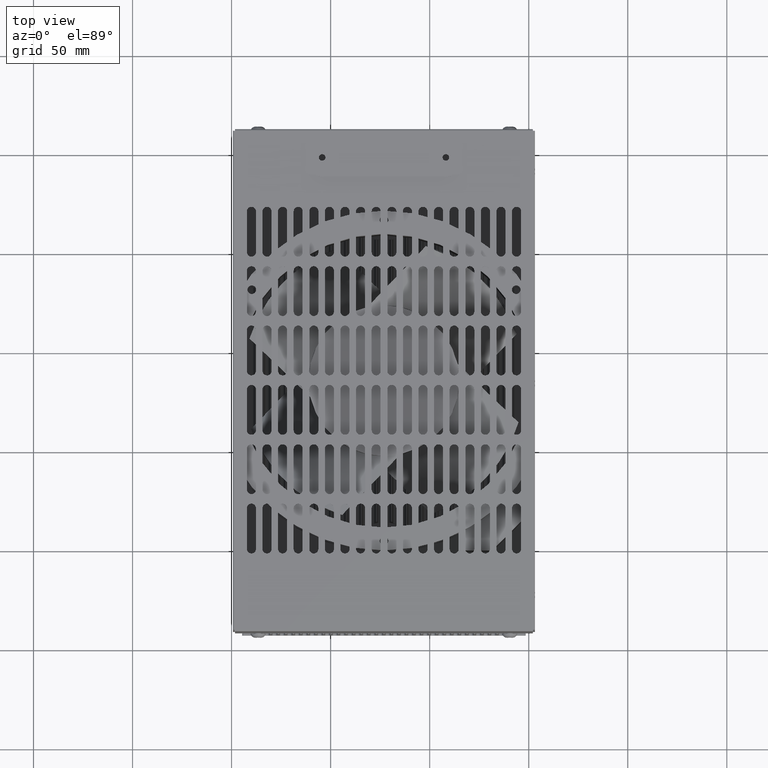
[diagram: clean part render]
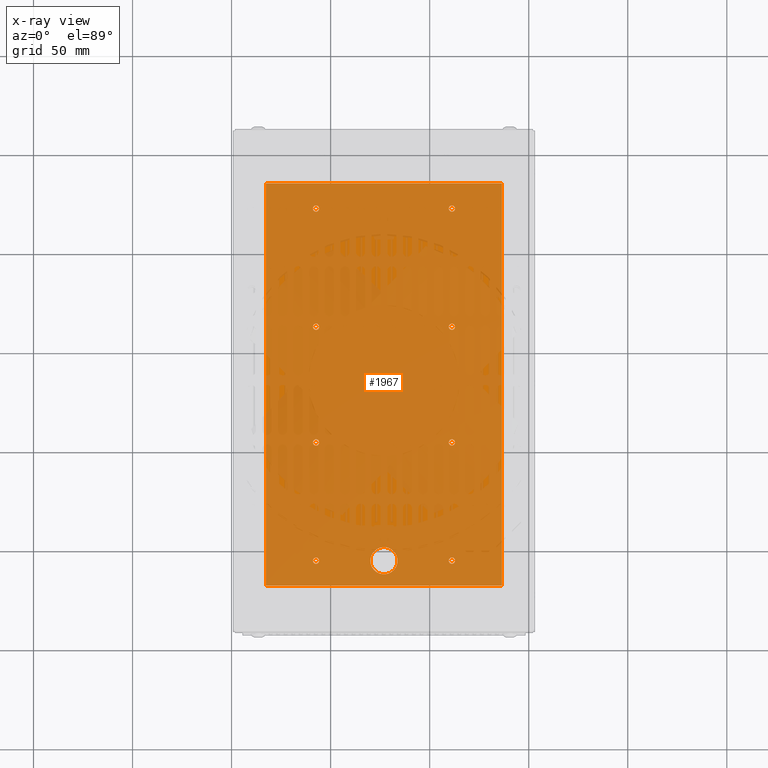
[diagram: x-ray — body ghosted, one internal face saturated and labeled with its STEP entity id]
A machine part, top view, then the same camera in x-ray: the body is ghosted and one INTERNAL B-rep face — a face not visible from any outside direction — is saturated and labeled: STEP entity #1967.
In plain terms, the highlighted planar face has unit normal (0, 0, 1).
Its self-contained STEP definition (entity closure, byte-faithful):
#261 = EDGE_CURVE ( 'NONE', #45314, #71856, #55487, .T. ) ;
#308 = AXIS2_PLACEMENT_3D ( 'NONE', #40491, #94287, #48203 ) ;
#1923 = DIRECTION ( 'NONE',  ( -1.000000000000000000, 0.0000000000000000000, 0.0000000000000000000 ) ) ;
#1967 = ADVANCED_FACE ( 'NONE', ( #25080, #88854, #4616, #84015, #63577, #43109, #22659, #2197, #81572, #61170 ), #57430, .T. ) ;
#2197 = FACE_BOUND ( 'NONE', #50331, .T. ) ;
#2760 = CIRCLE ( 'NONE', #72478, 0.2699999999999999600 ) ;
#4022 = EDGE_CURVE ( 'NONE', #7921, #97755, #33096, .T. ) ;
#4616 = FACE_BOUND ( 'NONE', #57439, .T. ) ;
#5127 = VERTEX_POINT ( 'NONE', #8212 ) ;
#5399 = ORIENTED_EDGE ( 'NONE', *, *, #89330, .T. ) ;
#5733 = VERTEX_POINT ( 'NONE', #73812 ) ;
#6463 = ORIENTED_EDGE ( 'NONE', *, *, #82906, .T. ) ;
#7098 = VERTEX_POINT ( 'NONE', #84224 ) ;
#7520 = DIRECTION ( 'NONE',  ( 0.0000000000000000000, 0.0000000000000000000, -1.000000000000000000 ) ) ;
#7827 = EDGE_CURVE ( 'NONE', #71856, #7098, #46711, .T. ) ;
#7921 = VERTEX_POINT ( 'NONE', #30986 ) ;
#8212 = CARTESIAN_POINT ( 'NONE',  ( 2.472114742927084200, -7.404337293092359200, 4.363333312979754000 ) ) ;
#9089 = CIRCLE ( 'NONE', #27390, 0.06249999999999995100 ) ;
#9346 = DIRECTION ( 'NONE',  ( 0.0000000000000000000, 0.0000000000000000000, -1.000000000000000000 ) ) ;
#9697 = AXIS2_PLACEMENT_3D ( 'NONE', #61720, #15691, #69485 ) ;
#11258 = EDGE_CURVE ( 'NONE', #51036, #99273, #13725, .T. ) ;
#11483 = CARTESIAN_POINT ( 'NONE',  ( 1.059616390252176000, -12.05433182656583900, 4.363333312979754000 ) ) ;
#12091 = CARTESIAN_POINT ( 'NONE',  ( -1.283385257072916700, -4.154333423447886800, 4.363333312979754000 ) ) ;
#12122 = ORIENTED_EDGE ( 'NONE', *, *, #38075, .T. ) ;
#12181 = CARTESIAN_POINT ( 'NONE',  ( 2.409614742927082900, -12.05432955380341700, 4.363333312979754000 ) ) ;
#12559 = EDGE_CURVE ( 'NONE', #97755, #7921, #76029, .T. ) ;
#13725 = CIRCLE ( 'NONE', #61596, 0.06249999999999995100 ) ;
#13944 = ORIENTED_EDGE ( 'NONE', *, *, #27719, .T. ) ;
#14129 = EDGE_LOOP ( 'NONE', ( #5399, #40756 ) ) ;
#14263 = DIRECTION ( 'NONE',  ( 0.0000000000000000000, 0.0000000000000000000, -1.000000000000000000 ) ) ;
#14338 = EDGE_CURVE ( 'NONE', #5733, #45314, #25846, .T. ) ;
#14961 = EDGE_CURVE ( 'NONE', #79370, #5127, #31724, .T. ) ;
#15691 = DIRECTION ( 'NONE',  ( 0.0000000000000000000, 0.0000000000000000000, -1.000000000000000000 ) ) ;
#15860 = VECTOR ( 'NONE', #39005, 39.37007874015748100 ) ;
#16414 = CIRCLE ( 'NONE', #95523, 0.06249999999999997900 ) ;
#16610 = DIRECTION ( 'NONE',  ( 0.0000000000000000000, 0.0000000000000000000, -1.000000000000000000 ) ) ;
#16647 = VERTEX_POINT ( 'NONE', #59792 ) ;
#17989 = AXIS2_PLACEMENT_3D ( 'NONE', #94078, #48003, #1923 ) ;
#18127 = CARTESIAN_POINT ( 'NONE',  ( -0.2903852570729170100, -5.054337293092356900, 4.363333312979754000 ) ) ;
#18261 = LINE ( 'NONE', #54479, #15860 ) ;
#18499 = VERTEX_POINT ( 'NONE', #47690 ) ;
#18735 = VERTEX_POINT ( 'NONE', #50646 ) ;
#19159 = CARTESIAN_POINT ( 'NONE',  ( 2.409614742927084200, -9.704329553803416900, 4.363333312979754000 ) ) ;
#19189 = DIRECTION ( 'NONE',  ( -1.000000000000000000, 0.0000000000000000000, 0.0000000000000000000 ) ) ;
#19290 = CIRCLE ( 'NONE', #51302, 0.06249999999999995100 ) ;
#19924 = DIRECTION ( 'NONE',  ( -1.000000000000000000, 0.0000000000000000000, 0.0000000000000000000 ) ) ;
#22659 = FACE_BOUND ( 'NONE', #81579, .T. ) ;
#23432 = VECTOR ( 'NONE', #91827, 39.37007874015748100 ) ;
#24475 = VERTEX_POINT ( 'NONE', #88794 ) ;
#24524 = EDGE_LOOP ( 'NONE', ( #93824, #24796 ) ) ;
#24591 = CARTESIAN_POINT ( 'NONE',  ( 2.409614742927084200, -5.054337293092358700, 4.363333312979754000 ) ) ;
#24796 = ORIENTED_EDGE ( 'NONE', *, *, #59131, .T. ) ;
#25080 = FACE_BOUND ( 'NONE', #91802, .T. ) ;
#25433 = VERTEX_POINT ( 'NONE', #48235 ) ;
#25589 = VERTEX_POINT ( 'NONE', #27348 ) ;
#25846 = LINE ( 'NONE', #38047, #23432 ) ;
#25852 = DIRECTION ( 'NONE',  ( -1.000000000000000000, 0.0000000000000000000, 0.0000000000000000000 ) ) ;
#26175 = DIRECTION ( 'NONE',  ( 0.0000000000000000000, 0.0000000000000000000, -1.000000000000000000 ) ) ;
#26301 = CARTESIAN_POINT ( 'NONE',  ( 2.409614742927084200, -9.704329553803416900, 4.363333312979754000 ) ) ;
#26419 = CARTESIAN_POINT ( 'NONE',  ( 1.059616390252176000, -12.05433182656583900, 4.363333312979754000 ) ) ;
#26762 = CARTESIAN_POINT ( 'NONE',  ( 3.636914742927082900, -4.554333423447886300, 4.363333312979754000 ) ) ;
#26769 = CIRCLE ( 'NONE', #81180, 0.06249999999999997900 ) ;
#26818 = DIRECTION ( 'NONE',  ( 0.0000000000000000000, 0.0000000000000000000, 1.000000000000000000 ) ) ;
#26857 = AXIS2_PLACEMENT_3D ( 'NONE', #24591, #78347, #32315 ) ;
#26908 = DIRECTION ( 'NONE',  ( -1.000000000000000000, 0.0000000000000000000, 0.0000000000000000000 ) ) ;
#27348 = CARTESIAN_POINT ( 'NONE',  ( 2.347114742927084200, -5.054337293092358700, 4.363333312979754000 ) ) ;
#27390 = AXIS2_PLACEMENT_3D ( 'NONE', #55421, #9346, #63139 ) ;
#27719 = EDGE_CURVE ( 'NONE', #99273, #51036, #62773, .T. ) ;
#28454 = CIRCLE ( 'NONE', #38259, 0.06249999999999997900 ) ;
#28753 = AXIS2_PLACEMENT_3D ( 'NONE', #95773, #26818, #80580 ) ;
#28940 = CARTESIAN_POINT ( 'NONE',  ( -0.3528852570729169600, -5.054337293092356900, 4.363333312979754000 ) ) ;
#28981 = DIRECTION ( 'NONE',  ( 0.0000000000000000000, 0.0000000000000000000, -1.000000000000000000 ) ) ;
#28997 = VERTEX_POINT ( 'NONE', #43843 ) ;
#29301 = VERTEX_POINT ( 'NONE', #30667 ) ;
#29521 = VERTEX_POINT ( 'NONE', #95202 ) ;
#29956 = EDGE_CURVE ( 'NONE', #5127, #79370, #9089, .T. ) ;
#30667 = CARTESIAN_POINT ( 'NONE',  ( 2.347114742927082900, -12.05432955380341700, 4.363333312979754000 ) ) ;
#30986 = CARTESIAN_POINT ( 'NONE',  ( -0.2278852570729170100, -5.054337293092356900, 4.363333312979754000 ) ) ;
#31069 = ORIENTED_EDGE ( 'NONE', *, *, #53359, .T. ) ;
#31724 = CIRCLE ( 'NONE', #17989, 0.06249999999999995100 ) ;
#32315 = DIRECTION ( 'NONE',  ( -1.000000000000000000, 0.0000000000000000000, 0.0000000000000000000 ) ) ;
#32815 = ORIENTED_EDGE ( 'NONE', *, *, #59971, .T. ) ;
#33096 = CIRCLE ( 'NONE', #66950, 0.06249999999999997900 ) ;
#33790 = CIRCLE ( 'NONE', #9697, 0.06249999999999995100 ) ;
#34019 = DIRECTION ( 'NONE',  ( -1.000000000000000000, 0.0000000000000000000, 0.0000000000000000000 ) ) ;
#34152 = DIRECTION ( 'NONE',  ( -1.000000000000000000, 0.0000000000000000000, 0.0000000000000000000 ) ) ;
#34503 = DIRECTION ( 'NONE',  ( -1.000000000000000000, -0.0000000000000000000, 0.0000000000000000000 ) ) ;
#34881 = AXIS2_PLACEMENT_3D ( 'NONE', #11483, #65287, #19189 ) ;
#35010 = VECTOR ( 'NONE', #34503, 39.37007874015748100 ) ;
#35848 = EDGE_CURVE ( 'NONE', #28997, #24475, #40620, .T. ) ;
#37596 = AXIS2_PLACEMENT_3D ( 'NONE', #26301, #80059, #34019 ) ;
#37857 = ORIENTED_EDGE ( 'NONE', *, *, #58628, .T. ) ;
#38047 = CARTESIAN_POINT ( 'NONE',  ( 3.402614742927081000, -4.154333423447886800, 4.363333312979754000 ) ) ;
#38075 = EDGE_CURVE ( 'NONE', #25433, #61184, #87159, .T. ) ;
#38259 = AXIS2_PLACEMENT_3D ( 'NONE', #53628, #7520, #61321 ) ;
#39005 = DIRECTION ( 'NONE',  ( 1.000000000000000000, 0.0000000000000000000, -0.0000000000000000000 ) ) ;
#39365 = DIRECTION ( 'NONE',  ( 0.0000000000000000000, 0.0000000000000000000, -1.000000000000000000 ) ) ;
#40491 = CARTESIAN_POINT ( 'NONE',  ( -0.2903852570729170100, -7.404337293092358300, 4.363333312979754000 ) ) ;
#40620 = CIRCLE ( 'NONE', #43315, 0.06249999999999997900 ) ;
#40756 = ORIENTED_EDGE ( 'NONE', *, *, #35848, .T. ) ;
#42085 = ORIENTED_EDGE ( 'NONE', *, *, #14961, .T. ) ;
#43109 = FACE_BOUND ( 'NONE', #44864, .T. ) ;
#43315 = AXIS2_PLACEMENT_3D ( 'NONE', #72185, #26175, #79922 ) ;
#43843 = CARTESIAN_POINT ( 'NONE',  ( -0.2278852570729180400, -12.05432955380341700, 4.363333312979754000 ) ) ;
#44864 = EDGE_LOOP ( 'NONE', ( #80155, #13944 ) ) ;
#44995 = DIRECTION ( 'NONE',  ( 0.0000000000000000000, 0.0000000000000000000, -1.000000000000000000 ) ) ;
#45314 = VERTEX_POINT ( 'NONE', #68547 ) ;
#46287 = CARTESIAN_POINT ( 'NONE',  ( -0.2278852570729170100, -7.404337293092358300, 4.363333312979754000 ) ) ;
#46711 = LINE ( 'NONE', #12091, #64775 ) ;
#47690 = CARTESIAN_POINT ( 'NONE',  ( 2.472114742927084200, -5.054337293092358700, 4.363333312979754000 ) ) ;
#47863 = ORIENTED_EDGE ( 'NONE', *, *, #80604, .T. ) ;
#48003 = DIRECTION ( 'NONE',  ( 0.0000000000000000000, 0.0000000000000000000, -1.000000000000000000 ) ) ;
#48203 = DIRECTION ( 'NONE',  ( -1.000000000000000000, 0.0000000000000000000, 0.0000000000000000000 ) ) ;
#48235 = CARTESIAN_POINT ( 'NONE',  ( -0.3528852570729169600, -7.404337293092358300, 4.363333312979754000 ) ) ;
#49795 = CIRCLE ( 'NONE', #83991, 0.06249999999999995100 ) ;
#50331 = EDGE_LOOP ( 'NONE', ( #69962, #31069 ) ) ;
#50646 = CARTESIAN_POINT ( 'NONE',  ( -0.3528852570729180100, -9.704329553803416900, 4.363333312979754000 ) ) ;
#51036 = VERTEX_POINT ( 'NONE', #85066 ) ;
#51302 = AXIS2_PLACEMENT_3D ( 'NONE', #91058, #44995, #98762 ) ;
#51370 = CARTESIAN_POINT ( 'NONE',  ( 2.347114742927084200, -7.404337293092359200, 4.363333312979754000 ) ) ;
#51692 = ORIENTED_EDGE ( 'NONE', *, *, #14338, .T. ) ;
#51923 = VERTEX_POINT ( 'NONE', #96314 ) ;
#52789 = ORIENTED_EDGE ( 'NONE', *, *, #4022, .T. ) ;
#53359 = EDGE_CURVE ( 'NONE', #61267, #18735, #28454, .T. ) ;
#53628 = CARTESIAN_POINT ( 'NONE',  ( -0.2903852570729180100, -9.704329553803416900, 4.363333312979754000 ) ) ;
#54479 = CARTESIAN_POINT ( 'NONE',  ( 3.636914742927082900, -12.55433342344788600, 4.363333312979754000 ) ) ;
#54677 = CIRCLE ( 'NONE', #89175, 0.06249999999999997900 ) ;
#55421 = CARTESIAN_POINT ( 'NONE',  ( 2.409614742927084200, -7.404337293092359200, 4.363333312979754000 ) ) ;
#55487 = LINE ( 'NONE', #26762, #35010 ) ;
#57430 = PLANE ( 'NONE',  #28753 ) ;
#57439 = EDGE_LOOP ( 'NONE', ( #42085, #70677 ) ) ;
#58157 = DIRECTION ( 'NONE',  ( 0.0000000000000000000, -1.000000000000000000, -0.0000000000000000000 ) ) ;
#58628 = EDGE_CURVE ( 'NONE', #7098, #5733, #18261, .T. ) ;
#59131 = EDGE_CURVE ( 'NONE', #18499, #25589, #33790, .T. ) ;
#59750 = EDGE_LOOP ( 'NONE', ( #12122, #82966 ) ) ;
#59792 = CARTESIAN_POINT ( 'NONE',  ( 1.329616390252176000, -12.05433182656583900, 4.363333312979754000 ) ) ;
#59971 = EDGE_CURVE ( 'NONE', #16647, #51923, #88969, .T. ) ;
#60322 = CARTESIAN_POINT ( 'NONE',  ( -0.2903852570729180100, -9.704329553803416900, 4.363333312979754000 ) ) ;
#61170 = FACE_OUTER_BOUND ( 'NONE', #69210, .T. ) ;
#61184 = VERTEX_POINT ( 'NONE', #46287 ) ;
#61267 = VERTEX_POINT ( 'NONE', #93676 ) ;
#61321 = DIRECTION ( 'NONE',  ( -1.000000000000000000, 0.0000000000000000000, 0.0000000000000000000 ) ) ;
#61596 = AXIS2_PLACEMENT_3D ( 'NONE', #19159, #72937, #26908 ) ;
#61720 = CARTESIAN_POINT ( 'NONE',  ( 2.409614742927084200, -5.054337293092358700, 4.363333312979754000 ) ) ;
#62647 = CARTESIAN_POINT ( 'NONE',  ( -0.2903852570729180100, -12.05432955380341700, 4.363333312979754000 ) ) ;
#62773 = CIRCLE ( 'NONE', #37596, 0.06249999999999995100 ) ;
#63139 = DIRECTION ( 'NONE',  ( -1.000000000000000000, 0.0000000000000000000, 0.0000000000000000000 ) ) ;
#63577 = FACE_BOUND ( 'NONE', #59750, .T. ) ;
#64775 = VECTOR ( 'NONE', #58157, 39.37007874015748100 ) ;
#65287 = DIRECTION ( 'NONE',  ( 0.0000000000000000000, 0.0000000000000000000, -1.000000000000000000 ) ) ;
#66004 = DIRECTION ( 'NONE',  ( 0.0000000000000000000, 0.0000000000000000000, -1.000000000000000000 ) ) ;
#66950 = AXIS2_PLACEMENT_3D ( 'NONE', #75039, #28981, #82755 ) ;
#68080 = AXIS2_PLACEMENT_3D ( 'NONE', #18127, #71879, #25852 ) ;
#68088 = DIRECTION ( 'NONE',  ( -1.000000000000000000, 0.0000000000000000000, 0.0000000000000000000 ) ) ;
#68297 = ORIENTED_EDGE ( 'NONE', *, *, #90962, .T. ) ;
#68547 = CARTESIAN_POINT ( 'NONE',  ( 3.402614742927081000, -4.554333423447892500, 4.363333312979754000 ) ) ;
#69210 = EDGE_LOOP ( 'NONE', ( #69362, #82476, #37857, #51692 ) ) ;
#69362 = ORIENTED_EDGE ( 'NONE', *, *, #261, .T. ) ;
#69485 = DIRECTION ( 'NONE',  ( -1.000000000000000000, 0.0000000000000000000, 0.0000000000000000000 ) ) ;
#69962 = ORIENTED_EDGE ( 'NONE', *, *, #95531, .T. ) ;
#70389 = DIRECTION ( 'NONE',  ( -1.000000000000000000, 0.0000000000000000000, 0.0000000000000000000 ) ) ;
#70677 = ORIENTED_EDGE ( 'NONE', *, *, #29956, .T. ) ;
#71856 = VERTEX_POINT ( 'NONE', #77906 ) ;
#71879 = DIRECTION ( 'NONE',  ( 0.0000000000000000000, 0.0000000000000000000, -1.000000000000000000 ) ) ;
#72185 = CARTESIAN_POINT ( 'NONE',  ( -0.2903852570729180100, -12.05432955380341700, 4.363333312979754000 ) ) ;
#72478 = AXIS2_PLACEMENT_3D ( 'NONE', #26419, #80191, #34152 ) ;
#72937 = DIRECTION ( 'NONE',  ( 0.0000000000000000000, 0.0000000000000000000, -1.000000000000000000 ) ) ;
#73812 = CARTESIAN_POINT ( 'NONE',  ( 3.402614742927081000, -12.55433342344789000, 4.363333312979754000 ) ) ;
#75039 = CARTESIAN_POINT ( 'NONE',  ( -0.2903852570729170100, -5.054337293092356900, 4.363333312979754000 ) ) ;
#76029 = CIRCLE ( 'NONE', #68080, 0.06249999999999997900 ) ;
#77906 = CARTESIAN_POINT ( 'NONE',  ( -1.283385257072916700, -4.554333423447886300, 4.363333312979754000 ) ) ;
#78347 = DIRECTION ( 'NONE',  ( 0.0000000000000000000, 0.0000000000000000000, -1.000000000000000000 ) ) ;
#78990 = EDGE_CURVE ( 'NONE', #61184, #25433, #16414, .T. ) ;
#79370 = VERTEX_POINT ( 'NONE', #51370 ) ;
#79922 = DIRECTION ( 'NONE',  ( -1.000000000000000000, 0.0000000000000000000, 0.0000000000000000000 ) ) ;
#80059 = DIRECTION ( 'NONE',  ( 0.0000000000000000000, 0.0000000000000000000, -1.000000000000000000 ) ) ;
#80155 = ORIENTED_EDGE ( 'NONE', *, *, #11258, .T. ) ;
#80191 = DIRECTION ( 'NONE',  ( 0.0000000000000000000, 0.0000000000000000000, -1.000000000000000000 ) ) ;
#80580 = DIRECTION ( 'NONE',  ( 1.000000000000000000, 0.0000000000000000000, -0.0000000000000000000 ) ) ;
#80604 = EDGE_CURVE ( 'NONE', #29521, #29301, #49795, .T. ) ;
#81180 = AXIS2_PLACEMENT_3D ( 'NONE', #60322, #14263, #68088 ) ;
#81572 = FACE_BOUND ( 'NONE', #14129, .T. ) ;
#81579 = EDGE_LOOP ( 'NONE', ( #6463, #47863 ) ) ;
#82476 = ORIENTED_EDGE ( 'NONE', *, *, #7827, .T. ) ;
#82755 = DIRECTION ( 'NONE',  ( -1.000000000000000000, 0.0000000000000000000, 0.0000000000000000000 ) ) ;
#82906 = EDGE_CURVE ( 'NONE', #29301, #29521, #19290, .T. ) ;
#82934 = CIRCLE ( 'NONE', #26857, 0.06249999999999995100 ) ;
#82966 = ORIENTED_EDGE ( 'NONE', *, *, #78990, .T. ) ;
#83388 = EDGE_CURVE ( 'NONE', #25589, #18499, #82934, .T. ) ;
#83991 = AXIS2_PLACEMENT_3D ( 'NONE', #12181, #66004, #19924 ) ;
#84015 = FACE_BOUND ( 'NONE', #91408, .T. ) ;
#84224 = CARTESIAN_POINT ( 'NONE',  ( -1.283385257072916700, -12.55433342344789000, 4.363333312979754000 ) ) ;
#84914 = ORIENTED_EDGE ( 'NONE', *, *, #12559, .T. ) ;
#85066 = CARTESIAN_POINT ( 'NONE',  ( 2.347114742927084200, -9.704329553803416900, 4.363333312979754000 ) ) ;
#85395 = CARTESIAN_POINT ( 'NONE',  ( -0.2903852570729170100, -7.404337293092358300, 4.363333312979754000 ) ) ;
#87159 = CIRCLE ( 'NONE', #308, 0.06249999999999997900 ) ;
#87803 = CARTESIAN_POINT ( 'NONE',  ( 2.472114742927084200, -9.704329553803416900, 4.363333312979754000 ) ) ;
#88794 = CARTESIAN_POINT ( 'NONE',  ( -0.3528852570729180100, -12.05432955380341700, 4.363333312979754000 ) ) ;
#88854 = FACE_BOUND ( 'NONE', #24524, .T. ) ;
#88969 = CIRCLE ( 'NONE', #34881, 0.2699999999999999600 ) ;
#89175 = AXIS2_PLACEMENT_3D ( 'NONE', #62647, #16610, #70389 ) ;
#89330 = EDGE_CURVE ( 'NONE', #24475, #28997, #54677, .T. ) ;
#90962 = EDGE_CURVE ( 'NONE', #51923, #16647, #2760, .T. ) ;
#91058 = CARTESIAN_POINT ( 'NONE',  ( 2.409614742927082900, -12.05432955380341700, 4.363333312979754000 ) ) ;
#91408 = EDGE_LOOP ( 'NONE', ( #84914, #52789 ) ) ;
#91802 = EDGE_LOOP ( 'NONE', ( #68297, #32815 ) ) ;
#91827 = DIRECTION ( 'NONE',  ( -0.0000000000000000000, 1.000000000000000000, 0.0000000000000000000 ) ) ;
#93157 = DIRECTION ( 'NONE',  ( -1.000000000000000000, 0.0000000000000000000, 0.0000000000000000000 ) ) ;
#93676 = CARTESIAN_POINT ( 'NONE',  ( -0.2278852570729180400, -9.704329553803416900, 4.363333312979754000 ) ) ;
#93824 = ORIENTED_EDGE ( 'NONE', *, *, #83388, .T. ) ;
#94078 = CARTESIAN_POINT ( 'NONE',  ( 2.409614742927084200, -7.404337293092359200, 4.363333312979754000 ) ) ;
#94287 = DIRECTION ( 'NONE',  ( 0.0000000000000000000, 0.0000000000000000000, -1.000000000000000000 ) ) ;
#95202 = CARTESIAN_POINT ( 'NONE',  ( 2.472114742927083300, -12.05432955380341700, 4.363333312979754000 ) ) ;
#95523 = AXIS2_PLACEMENT_3D ( 'NONE', #85395, #39365, #93157 ) ;
#95531 = EDGE_CURVE ( 'NONE', #18735, #61267, #26769, .T. ) ;
#95773 = CARTESIAN_POINT ( 'NONE',  ( 3.636914742927082900, -4.154333423447886800, 4.363333312979754000 ) ) ;
#96314 = CARTESIAN_POINT ( 'NONE',  ( 0.7896163902521760000, -12.05433182656583900, 4.363333312979754000 ) ) ;
#97755 = VERTEX_POINT ( 'NONE', #28940 ) ;
#98762 = DIRECTION ( 'NONE',  ( -1.000000000000000000, 0.0000000000000000000, 0.0000000000000000000 ) ) ;
#99273 = VERTEX_POINT ( 'NONE', #87803 ) ;